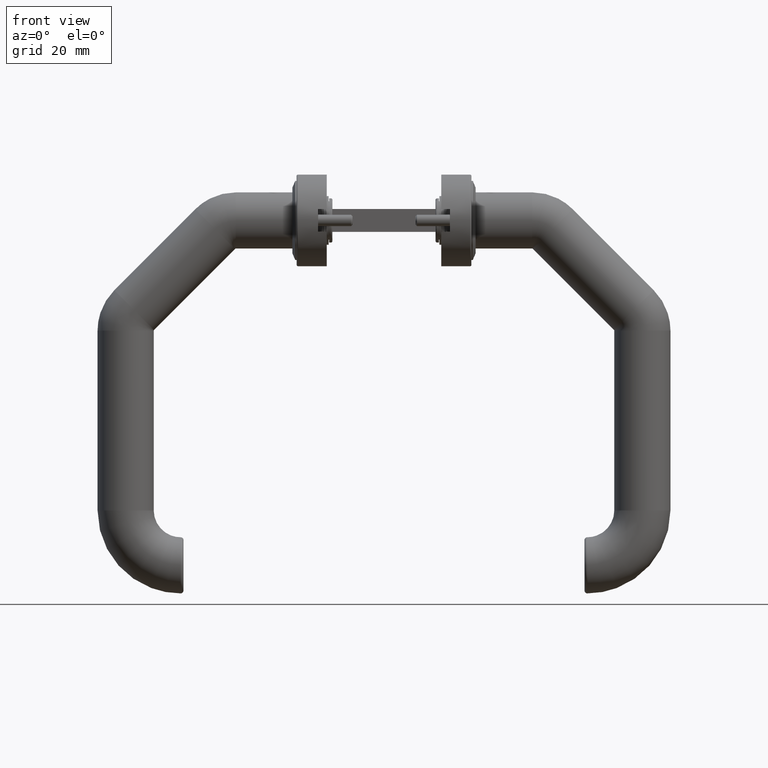
[diagram: clean part render]
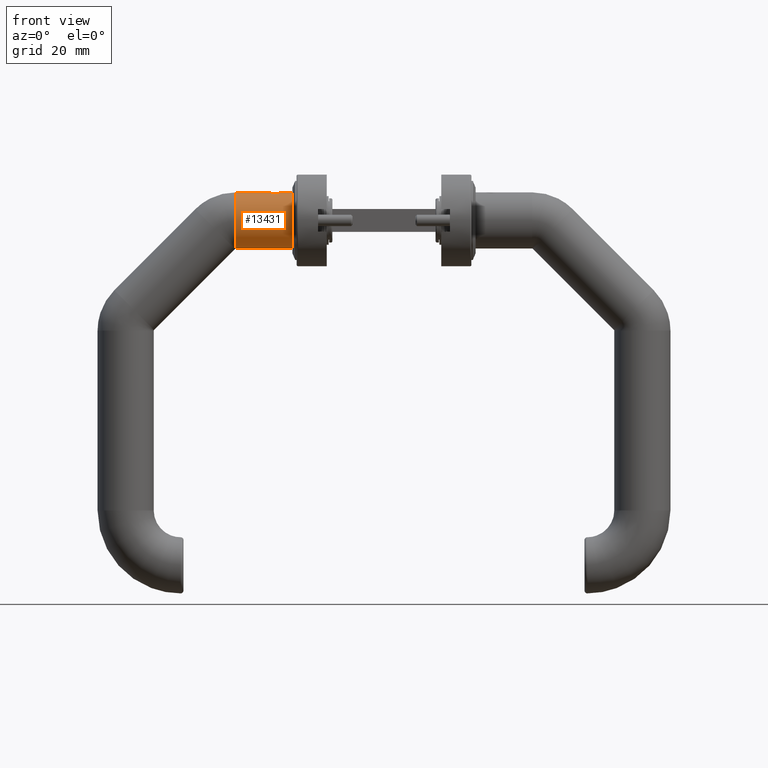
[diagram: same view with one face highlighted and labeled with its STEP entity id]
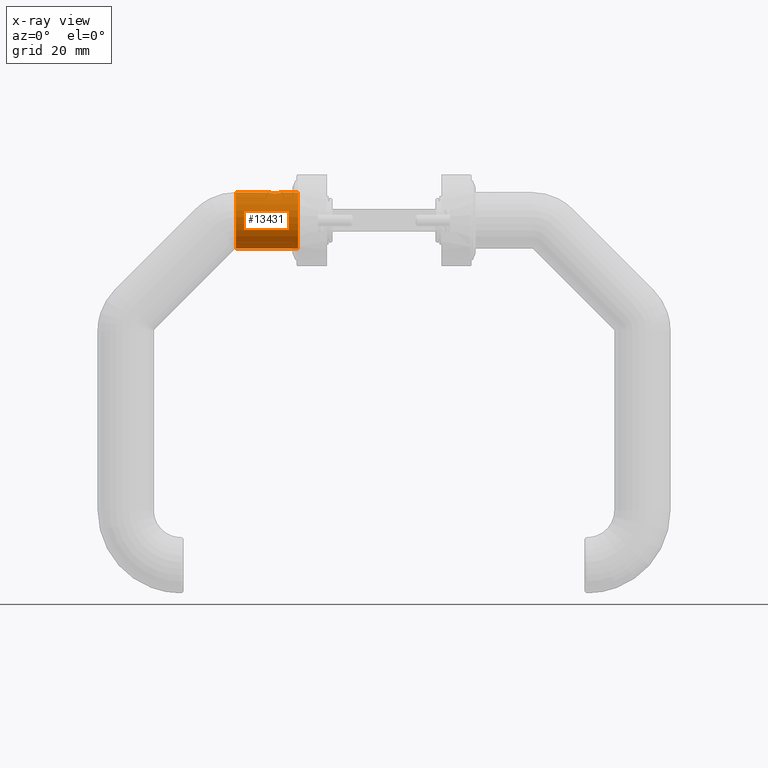
[diagram: x-ray of the same camera — body ghosted, the highlighted face saturated]
A machine part, front view. The second image highlights one B-rep face of the part: STEP entity #13431.
The next image is the same camera in x-ray: the body ghosted, the highlighted face saturated — about 0% of this face is hidden behind the body in this view.
In plain terms, the highlighted cylindrical surface (bore or boss wall) has radius 9.8 mm, axis along (1, -0, -0).
Its self-contained STEP definition (entity closure, byte-faithful):
#393 = CARTESIAN_POINT ( 'NONE',  ( 6.877672244774749430E-16, 2.439454888092384977E-16, -64.50000000000000000 ) ) ;
#605 = CARTESIAN_POINT ( 'NONE',  ( -0.03222526855719375777, -0.8084961451052997683, -64.37131909482303627 ) ) ;
#678 = CARTESIAN_POINT ( 'NONE',  ( -0.3032711140302906672, -2.419349083781704213, -62.65105608789602343 ) ) ;
#748 = CARTESIAN_POINT ( 'NONE',  ( -0.2603281164761297450, 2.244750030947455510, -60.88724060680307559 ) ) ;
#1163 = CARTESIAN_POINT ( 'NONE',  ( -0.01731965858524605467, 0.6563310331507729023, -59.56575289623682323 ) ) ;
#1239 = CARTESIAN_POINT ( 'NONE',  ( -0.004250202253367362480, -0.3305669260421769118, -59.51651629900150908 ) ) ;
#1390 = EDGE_CURVE ( 'NONE', #12795, #12795, #21080, .T. ) ;
#2803 = CARTESIAN_POINT ( 'NONE',  ( 6.877672244774749430E-16, 2.439454888092384977E-16, -64.50000000000000000 ) ) ;
#2877 = CARTESIAN_POINT ( 'NONE',  ( -0.3199001735057032114, -2.483707475874413539, -61.67134647831474581 ) ) ;
#2948 = CARTESIAN_POINT ( 'NONE',  ( -0.07965136943626094368, 1.254433874869354426, -59.83135150041486128 ) ) ;
#3881 = CARTESIAN_POINT ( 'NONE',  ( -0.07963079918187232487, -1.254269749442054049, -64.16873877719235963 ) ) ;
#4294 = CARTESIAN_POINT ( 'NONE',  ( -0.1395580363200266127, -1.652182753594110487, -60.11662822935696227 ) ) ;
#4360 = CARTESIAN_POINT ( 'NONE',  ( -0.3034912852203699440, 2.420208203775276345, -62.64761672029455042 ) ) ;
#4429 = CARTESIAN_POINT ( 'NONE',  ( -0.1186920950575890699, -1.526728367811462705, -60.01366165276162690 ) ) ;
#4507 = CARTESIAN_POINT ( 'NONE',  ( -0.1185305898498430210, 1.525756175294358696, -60.01286418312088955 ) ) ;
#5584 = CARTESIAN_POINT ( 'NONE',  ( -0.1393925503116195952, 1.651186141389332063, -60.11581383016151392 ) ) ;
#5632 = DIRECTION ( 'NONE',  ( -2.245159975835133303E-16, -0.000000000000000000, -1.000000000000000000 ) ) ;
#5710 = CARTESIAN_POINT ( 'NONE',  ( 6.878497411715155109E-16, 0.000000000000000000, -64.50000000000000000 ) ) ;
#5812 = AXIS2_PLACEMENT_3D ( 'NONE', #15434, #5632, #20513 ) ;
#6013 = CARTESIAN_POINT ( 'NONE',  ( -0.3032269662662268606, 2.419173245366680547, -61.34866898483572584 ) ) ;
#6157 = CARTESIAN_POINT ( 'NONE',  ( -0.06190163135835345665, -1.110142076600776573, -59.75405506944511558 ) ) ;
#6204 = CARTESIAN_POINT ( 'NONE',  ( 3.469446951953614189E-15, 0.000000000000000000, -70.00000000000000000 ) ) ;
#6251 = DIRECTION ( 'NONE',  ( 1.000000000000000000, 0.000000000000000000, 0.000000000000000000 ) ) ;
#6257 = DIRECTION ( 'NONE',  ( 0.000000000000000000, 0.000000000000000000, 1.000000000000000000 ) ) ;
#6834 = CARTESIAN_POINT ( 'NONE',  ( -9.799999999999993605, 0.000000000000000000, -48.28427124746190202 ) ) ;
#7101 = CARTESIAN_POINT ( 'NONE',  ( -0.004206600728475651772, -0.3288885871912472503, -64.48365174076653261 ) ) ;
#7240 = CARTESIAN_POINT ( 'NONE',  ( -0.2454372364567553033, -2.183371196653801416, -60.73870489699667274 ) ) ;
#7495 = CARTESIAN_POINT ( 'NONE',  ( 8.673617379884035472E-15, 0.000000000000000000, -48.28427124746190202 ) ) ;
#7572 = EDGE_CURVE ( 'NONE', #16144, #16144, #10338, .T. ) ;
#7594 = CARTESIAN_POINT ( 'NONE',  ( -0.004208627328961914507, 0.3293675719674974967, -64.48364691859733000 ) ) ;
#7662 = CARTESIAN_POINT ( 'NONE',  ( -0.3242194218421826646, 2.499916487007189492, -61.83382951237098268 ) ) ;
#7733 = CARTESIAN_POINT ( 'NONE',  ( -0.3242687684830998229, -2.500103525782653602, -61.83778898141767399 ) ) ;
#8733 = CARTESIAN_POINT ( 'NONE',  ( -0.02022001733420480951, -0.6493377508243609597, -64.41972191740116216 ) ) ;
#8875 = CARTESIAN_POINT ( 'NONE',  ( -0.1816699612569117328, 1.881881833777883983, -60.34618805185602497 ) ) ;
#9222 = CARTESIAN_POINT ( 'NONE',  ( -0.02035144488383795053, 0.6515257115221695372, -64.41919392793285226 ) ) ;
#9296 = CARTESIAN_POINT ( 'NONE',  ( -0.3199367370856954218, -2.483849845290459157, -62.32804567491799475 ) ) ;
#9368 = CARTESIAN_POINT ( 'NONE',  ( -0.3242633206209040164, 2.500082876720866487, -62.16364804458456206 ) ) ;
#9661 = ORIENTED_EDGE ( 'NONE', *, *, #1390, .F. ) ;
#10338 = B_SPLINE_CURVE_WITH_KNOTS ( 'NONE', 3,
 ( #393, #20123, #7101, #8733, #605, #12024, #3881, #15317, #16969, #18632, #20263, #10437, #678, #9296, #14244, #7733, #2877, #18703, #20328, #7240, #10511, #4294, #4429, #15807, #6157, #15958, #20918, #1239, #14309, #17044, #1163, #14163, #2948, #4507, #5584, #8875, #12586, #14100, #748, #17539, #6013, #19211, #7662, #9368, #12513, #4360, #19137, #17612, #19058, #15884, #15737, #19279, #20763, #17397, #9222, #7594, #20690, #2803 ),
 .UNSPECIFIED., .T., .F.,
 ( 4, 2, 2, 2, 2, 2, 2, 2, 2, 2, 2, 2, 2, 2, 2, 2, 2, 2, 2, 2, 2, 2, 2, 2, 2, 2, 2, 2, 4 ),
 ( 0.000000000000000000, 0.0004904772195936762643, 0.0009809544391873525285, 0.001471431658781028901, 0.001961908878374705057, 0.002942863317562028746, 0.003433340537155690590, 0.003923817756749352001, 0.004414294976343034228, 0.004904772195936716456, 0.005885726635124100860, 0.006376203854717799567, 0.006866681074311499142, 0.007357158293905197849, 0.007847635513498896556, 0.008828589952686295705, 0.009319067172279994413, 0.009809544391873693120, 0.01030002161146739183, 0.01079049883106109053, 0.01128097605065478924, 0.01177145327024848795, 0.01226193048984220921, 0.01275240770943592873, 0.01373336214862336951, 0.01422383936821709077, 0.01471431658781081030, 0.01520479380740452982, 0.01569527102699825108 ),
 .UNSPECIFIED. ) ;
#10437 = CARTESIAN_POINT ( 'NONE',  ( -0.2909172645024511450, -2.370964932448635043, -62.80931967224398704 ) ) ;
#10486 = VERTEX_POINT ( 'NONE', #6204 ) ;
#10511 = CARTESIAN_POINT ( 'NONE',  ( -0.2032424808274678474, -1.999407976831230949, -60.46391534963098735 ) ) ;
#10749 = AXIS2_PLACEMENT_3D ( 'NONE', #6834, #6257, #18291 ) ;
#11028 = DIRECTION ( 'NONE',  ( 0.000000000000000000, 0.000000000000000000, 1.000000000000000000 ) ) ;
#12024 = CARTESIAN_POINT ( 'NONE',  ( -0.06198656234479368171, -1.110938121098267395, -64.24558160778295246 ) ) ;
#12404 = EDGE_LOOP ( 'NONE', ( #9661 ) ) ;
#12513 = CARTESIAN_POINT ( 'NONE',  ( -0.3199790666396039041, 2.484006566528216275, -62.32638404291714096 ) ) ;
#12586 = CARTESIAN_POINT ( 'NONE',  ( -0.2030856745485007941, 1.986903957928882525, -60.47402646427621420 ) ) ;
#12795 = VERTEX_POINT ( 'NONE', #7495 ) ;
#12842 = EDGE_LOOP ( 'NONE', ( #16872 ) ) ;
#13431 = ADVANCED_FACE ( 'NONE', ( #18639, #15791, #15531 ), #17094, .T. ) ;
#13561 = ORIENTED_EDGE ( 'NONE', *, *, #7572, .T. ) ;
#14100 = CARTESIAN_POINT ( 'NONE',  ( -0.2422896661976773058, 2.167654281295324559, -60.74395163845300516 ) ) ;
#14163 = CARTESIAN_POINT ( 'NONE',  ( -0.06167895857550533684, 1.108153674358352658, -59.75309595647255634 ) ) ;
#14244 = CARTESIAN_POINT ( 'NONE',  ( -0.3242138757993571208, -2.499895465810961337, -62.16538655990792250 ) ) ;
#14309 = CARTESIAN_POINT ( 'NONE',  ( -1.775902690375939596E-05, -0.1646096896668752252, -59.50006961539135375 ) ) ;
#15268 = EDGE_LOOP ( 'NONE', ( #13561 ) ) ;
#15317 = CARTESIAN_POINT ( 'NONE',  ( -0.1184919881285139420, -1.525507332216827994, -63.98732178255457370 ) ) ;
#15434 = CARTESIAN_POINT ( 'NONE',  ( -9.799999999999993605, 0.000000000000000000, -48.28427124746190202 ) ) ;
#15531 = FACE_OUTER_BOUND ( 'NONE', #12842, .T. ) ;
#15718 = CIRCLE ( 'NONE', #16542, 9.800000000000002487 ) ;
#15737 = CARTESIAN_POINT ( 'NONE',  ( -0.1187946192721940630, 1.527475690427669841, -63.98586865379881061 ) ) ;
#15791 = FACE_OUTER_BOUND ( 'NONE', #12404, .T. ) ;
#15807 = CARTESIAN_POINT ( 'NONE',  ( -0.07993515577941817662, -1.256567421003657037, -59.83263342849849664 ) ) ;
#15884 = CARTESIAN_POINT ( 'NONE',  ( -0.1399357609557942972, 1.654309899104497994, -63.88137536877044909 ) ) ;
#15958 = CARTESIAN_POINT ( 'NONE',  ( -0.03222695651067044448, -0.8084460640412463039, -59.62869254990819456 ) ) ;
#16144 = VERTEX_POINT ( 'NONE', #5710 ) ;
#16542 = AXIS2_PLACEMENT_3D ( 'NONE', #17566, #11028, #6251 ) ;
#16872 = ORIENTED_EDGE ( 'NONE', *, *, #17519, .T. ) ;
#16969 = CARTESIAN_POINT ( 'NONE',  ( -0.1397732700690397234, -1.653369955951816461, -63.88221085631509766 ) ) ;
#17044 = CARTESIAN_POINT ( 'NONE',  ( 3.534584799602446197E-05, 0.3260372883747067463, -59.49986144426424772 ) ) ;
#17094 = CYLINDRICAL_SURFACE ( 'NONE', #5812, 9.800000000000004263 ) ;
#17397 = CARTESIAN_POINT ( 'NONE',  ( -0.03243356118096779594, 0.8108701442688438510, -64.37045642218413377 ) ) ;
#17519 = EDGE_CURVE ( 'NONE', #10486, #10486, #15718, .T. ) ;
#17539 = CARTESIAN_POINT ( 'NONE',  ( -0.2910079100899571891, 2.371352310552505394, -61.19140591900264781 ) ) ;
#17566 = CARTESIAN_POINT ( 'NONE',  ( -9.799999999999998934, 0.000000000000000000, -70.00000000000000000 ) ) ;
#17612 = CARTESIAN_POINT ( 'NONE',  ( -0.2456095496539026091, 2.184076996224831202, -63.25951784526065325 ) ) ;
#18291 = DIRECTION ( 'NONE',  ( 1.000000000000000000, 0.000000000000000000, 0.000000000000000000 ) ) ;
#18632 = CARTESIAN_POINT ( 'NONE',  ( -0.2029243739203564212, -1.997646156598969158, -63.53779371455452463 ) ) ;
#18639 = FACE_BOUND ( 'NONE', #15268, .T. ) ;
#18703 = CARTESIAN_POINT ( 'NONE',  ( -0.3033394374289571371, -2.419614371200395908, -61.35016751565414950 ) ) ;
#19058 = CARTESIAN_POINT ( 'NONE',  ( -0.2030453551168127924, 1.998196917973321662, -63.53703193166802521 ) ) ;
#19137 = CARTESIAN_POINT ( 'NONE',  ( -0.2911054904295577450, 2.371722476732253782, -62.80720311901971797 ) ) ;
#19211 = CARTESIAN_POINT ( 'NONE',  ( -0.3197977296668061409, 2.483316765722868524, -61.66868576322081452 ) ) ;
#19279 = CARTESIAN_POINT ( 'NONE',  ( -0.07973867492358141518, 1.255165081136395688, -64.16827510110780963 ) ) ;
#20123 = CARTESIAN_POINT ( 'NONE',  ( 6.881672122580803291E-16, -0.1658972328802212348, -64.49999999999998579 ) ) ;
#20263 = CARTESIAN_POINT ( 'NONE',  ( -0.2455063996937635329, -2.183613694649696235, -63.26004896875771522 ) ) ;
#20328 = CARTESIAN_POINT ( 'NONE',  ( -0.2912225103693221739, -2.372202668177637808, -61.19399238161155807 ) ) ;
#20513 = DIRECTION ( 'NONE',  ( -1.000000000000000000, 0.000000000000000000, 0.000000000000000000 ) ) ;
#20690 = CARTESIAN_POINT ( 'NONE',  ( 6.873672366968697541E-16, 0.1658972328802364726, -64.50000000000002842 ) ) ;
#20763 = CARTESIAN_POINT ( 'NONE',  ( -0.06210011086397512065, 1.111831946282837436, -64.24508435555672747 ) ) ;
#20918 = CARTESIAN_POINT ( 'NONE',  ( -0.02042295698647438387, -0.6525806098935168498, -59.58109439346855396 ) ) ;
#21080 = CIRCLE ( 'NONE', #10749, 9.800000000000002487 ) ;